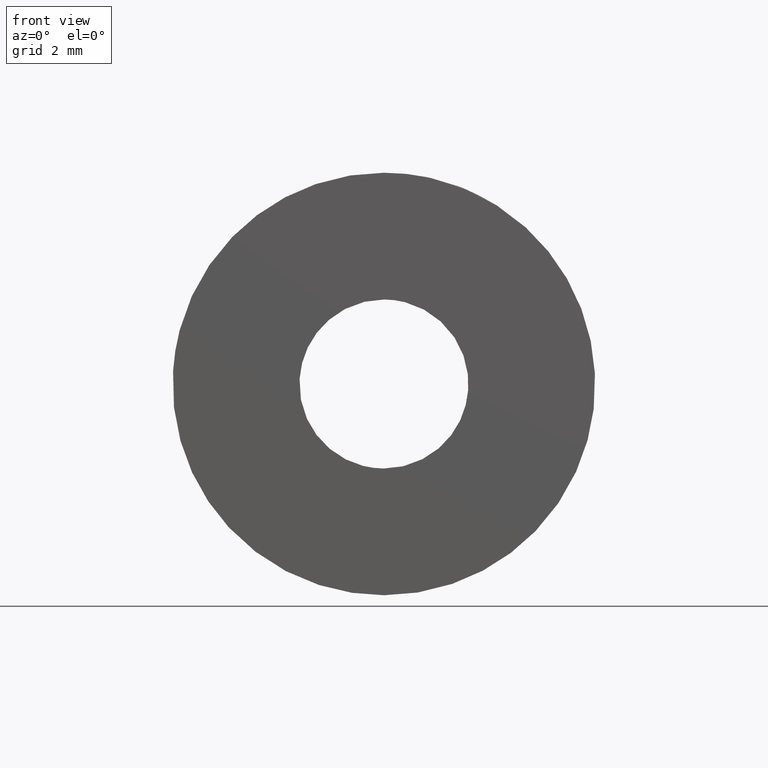
[diagram: clean part render]
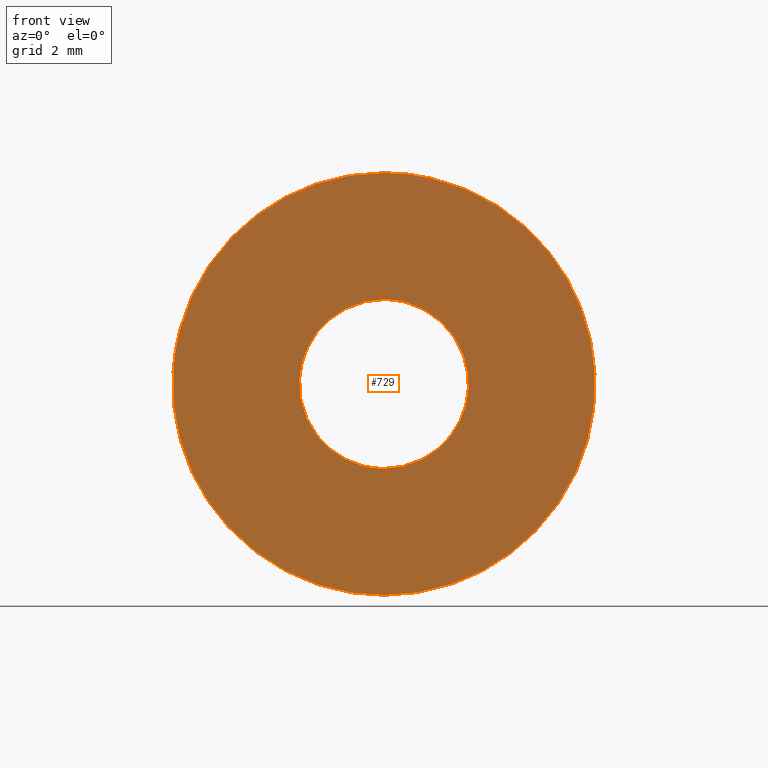
[diagram: same view with one face highlighted and labeled with its STEP entity id]
A machine part, front view. The second image highlights one B-rep face of the part: STEP entity #729.
In plain terms, the highlighted face is a freeform B-spline surface patch.
Its self-contained STEP definition (entity closure, byte-faithful):
#79=CARTESIAN_POINT('',(2.980407962932764,7.988144E-016,0.342298662684685));
#80=VERTEX_POINT('',#79);
#86=CARTESIAN_POINT('',(0.0,0.0,3.0));
#87=VERTEX_POINT('',#86);
#88=CARTESIAN_POINT('',(2.980407962932764,7.988144E-016,0.342298662684685));
#89=CARTESIAN_POINT('',(2.675172027152508,0.0,3.0));
#90=CARTESIAN_POINT('',(0.0,0.0,3.0));
#98=(BOUNDED_CURVE()B_SPLINE_CURVE(2,(#88,#89,#90),.UNSPECIFIED.,.F.,.U.)B_SPLINE_CURVE_WITH_KNOTS((3,3),(0.269767566702437,0.500000000000000),.UNSPECIFIED.)CURVE()GEOMETRIC_REPRESENTATION_ITEM()RATIONAL_B_SPLINE_CURVE((0.957344109625193,0.730265926144893,1.0))REPRESENTATION_ITEM(''));
#99=EDGE_CURVE('',#80,#87,#98,.T.);
#101=CARTESIAN_POINT('',(-2.994404452605104,-8.881784E-016,0.183144681107156));
#102=VERTEX_POINT('',#101);
#103=CARTESIAN_POINT('',(0.0,0.0,3.0));
#104=CARTESIAN_POINT('',(-2.822119971134776,0.0,3.000000000000001));
#105=CARTESIAN_POINT('',(-2.994404452605104,-8.881784E-016,0.183144681107156));
#113=(BOUNDED_CURVE()B_SPLINE_CURVE(2,(#103,#104,#105),.UNSPECIFIED.,.F.,.U.)B_SPLINE_CURVE_WITH_KNOTS((3,3),(0.500000000000000,0.739333070284946),.UNSPECIFIED.)CURVE()GEOMETRIC_REPRESENTATION_ITEM()RATIONAL_B_SPLINE_CURVE((1.0,0.719603866702944,0.976072273229979))REPRESENTATION_ITEM(''));
#114=EDGE_CURVE('',#87,#102,#113,.T.);
#224=CARTESIAN_POINT('',(0.0,0.0,-3.0));
#225=VERTEX_POINT('',#224);
#226=CARTESIAN_POINT('',(-2.994404452605104,-8.881784E-016,0.183144681107156));
#227=CARTESIAN_POINT('',(-3.000000000000000,0.0,0.091657349769728));
#228=CARTESIAN_POINT('',(-3.0,0.0,-1.836910E-016));
#229=CARTESIAN_POINT('',(-3.0,0.0,-3.0));
#230=CARTESIAN_POINT('',(0.0,0.0,-3.0));
#238=(BOUNDED_CURVE()B_SPLINE_CURVE(2,(#226,#227,#228,#229,#230),.UNSPECIFIED.,.F.,.U.)B_SPLINE_CURVE_WITH_KNOTS((3,2,3),(0.739333070284947,0.750000000000000,1.0),.UNSPECIFIED.)CURVE()GEOMETRIC_REPRESENTATION_ITEM()RATIONAL_B_SPLINE_CURVE((0.976072273229982,0.987502914483605,1.0,0.707106781186548,1.0))REPRESENTATION_ITEM(''));
#239=EDGE_CURVE('',#102,#225,#238,.T.);
#241=CARTESIAN_POINT('',(0.0,0.0,-3.0));
#242=CARTESIAN_POINT('',(3.0,0.0,-3.0));
#243=CARTESIAN_POINT('',(3.0,0.0,-1.836910E-016));
#244=CARTESIAN_POINT('',(3.0,0.0,0.171710022864526));
#245=CARTESIAN_POINT('',(2.980407962932764,7.988144E-016,0.342298662684685));
#253=(BOUNDED_CURVE()B_SPLINE_CURVE(2,(#241,#242,#243,#244,#245),.UNSPECIFIED.,.F.,.U.)B_SPLINE_CURVE_WITH_KNOTS((3,2,3),(0.0,0.250000000000000,0.269767566702437),.UNSPECIFIED.)CURVE()GEOMETRIC_REPRESENTATION_ITEM()RATIONAL_B_SPLINE_CURVE((1.0,0.707106781186548,1.0,0.976840855041655,0.957344109625193))REPRESENTATION_ITEM(''));
#254=EDGE_CURVE('',#225,#80,#253,.T.);
#607=CARTESIAN_POINT('',(7.447572011452393,1.611096E-015,-0.885252017342033));
#608=VERTEX_POINT('',#607);
#609=CARTESIAN_POINT('',(0.0,-1.377682E-015,7.500000000000000));
#610=VERTEX_POINT('',#609);
#611=CARTESIAN_POINT('',(7.447572011452393,1.611096E-015,-0.885252017342033));
#612=CARTESIAN_POINT('',(7.500000000000000,-1.377682E-015,-0.444178501028731));
#613=CARTESIAN_POINT('',(7.500000000000000,-1.377682E-015,-1.836910E-016));
#614=CARTESIAN_POINT('',(7.500000000000000,-1.377682E-015,7.500000000000000));
#615=CARTESIAN_POINT('',(0.0,-1.377682E-015,7.500000000000000));
#623=(BOUNDED_CURVE()B_SPLINE_CURVE(2,(#611,#612,#613,#614,#615),.UNSPECIFIED.,.F.,.U.)B_SPLINE_CURVE_WITH_KNOTS((3,2,3),(0.229562581136241,0.250000000000000,0.500000000000000),.UNSPECIFIED.)CURVE()GEOMETRIC_REPRESENTATION_ITEM()RATIONAL_B_SPLINE_CURVE((0.956026965128767,0.976056074419019,1.0,0.707106781186547,1.0))REPRESENTATION_ITEM(''));
#624=EDGE_CURVE('',#608,#610,#623,.T.);
#634=CARTESIAN_POINT('',(-7.486011152008860,8.099600E-016,0.457861367655936));
#635=VERTEX_POINT('',#634);
#641=CARTESIAN_POINT('',(0.0,-1.377682E-015,7.500000000000000));
#642=CARTESIAN_POINT('',(-7.055298031235735,-1.377682E-015,7.499999999999999));
#643=CARTESIAN_POINT('',(-7.486011152008861,8.099600E-016,0.457861367655936));
#651=(BOUNDED_CURVE()B_SPLINE_CURVE(2,(#641,#642,#643),.UNSPECIFIED.,.F.,.U.)B_SPLINE_CURVE_WITH_KNOTS((3,3),(0.500000000000000,0.739333023987528),.UNSPECIFIED.)CURVE()GEOMETRIC_REPRESENTATION_ITEM()RATIONAL_B_SPLINE_CURVE((1.0,0.719603920943743,0.976072174005725))REPRESENTATION_ITEM(''));
#652=EDGE_CURVE('',#610,#635,#651,.T.);
#675=CARTESIAN_POINT('',(0.0,-1.377682E-015,-7.500000000000000));
#676=VERTEX_POINT('',#675);
#677=CARTESIAN_POINT('',(0.0,-1.377682E-015,-7.500000000000000));
#678=CARTESIAN_POINT('',(6.661313216392585,-1.377682E-015,-7.499999999999999));
#679=CARTESIAN_POINT('',(7.447572011452393,1.611096E-015,-0.885252017342033));
#687=(BOUNDED_CURVE()B_SPLINE_CURVE(2,(#677,#678,#679),.UNSPECIFIED.,.F.,.U.)B_SPLINE_CURVE_WITH_KNOTS((3,3),(0.0,0.229562581136241),.UNSPECIFIED.)CURVE()GEOMETRIC_REPRESENTATION_ITEM()RATIONAL_B_SPLINE_CURVE((1.0,0.731050706767529,0.956026965128767))REPRESENTATION_ITEM(''));
#688=EDGE_CURVE('',#676,#608,#687,.T.);
#690=CARTESIAN_POINT('',(-7.486011152008861,8.099600E-016,0.457861367655936));
#691=CARTESIAN_POINT('',(-7.500000000000000,-1.377682E-015,0.229144381556083));
#692=CARTESIAN_POINT('',(-7.500000000000000,-1.377682E-015,-1.836910E-016));
#693=CARTESIAN_POINT('',(-7.500000000000000,-1.377682E-015,-7.500000000000000));
#694=CARTESIAN_POINT('',(0.0,-1.377682E-015,-7.500000000000000));
#702=(BOUNDED_CURVE()B_SPLINE_CURVE(2,(#690,#691,#692,#693,#694),.UNSPECIFIED.,.F.,.U.)B_SPLINE_CURVE_WITH_KNOTS((3,2,3),(0.739333023987528,0.750000000000000,1.0),.UNSPECIFIED.)CURVE()GEOMETRIC_REPRESENTATION_ITEM()RATIONAL_B_SPLINE_CURVE((0.976072174005725,0.987502860242804,1.0,0.707106781186547,1.0))REPRESENTATION_ITEM(''));
#703=EDGE_CURVE('',#635,#676,#702,.T.);
#712=CARTESIAN_POINT('',(-8.249067709212007,-6.888411E-016,8.249249970927089));
#713=CARTESIAN_POINT('',(-8.249067709212007,-6.888411E-016,-8.249250373258443));
#714=CARTESIAN_POINT('',(8.249113574986160,-6.888411E-016,8.249249970927089));
#715=CARTESIAN_POINT('',(8.249113574986160,-6.888411E-016,-8.249250373258443));
#716=B_SPLINE_SURFACE_WITH_KNOTS('',1,1,((#712,#714),(#713,#715)),.UNSPECIFIED.,.F.,.F.,.U.,(2,2),(2,2),(0.0,16.498500344185530),(0.0,16.498181284198171),.UNSPECIFIED.);
#717=ORIENTED_EDGE('',*,*,#688,.T.);
#718=ORIENTED_EDGE('',*,*,#624,.T.);
#719=ORIENTED_EDGE('',*,*,#652,.T.);
#720=ORIENTED_EDGE('',*,*,#703,.T.);
#721=EDGE_LOOP('',(#717,#718,#719,#720));
#722=FACE_OUTER_BOUND('',#721,.T.);
#723=ORIENTED_EDGE('',*,*,#114,.F.);
#724=ORIENTED_EDGE('',*,*,#99,.F.);
#725=ORIENTED_EDGE('',*,*,#254,.F.);
#726=ORIENTED_EDGE('',*,*,#239,.F.);
#727=EDGE_LOOP('',(#723,#724,#725,#726));
#728=FACE_BOUND('',#727,.T.);
#729=ADVANCED_FACE('',(#722,#728),#716,.T.);